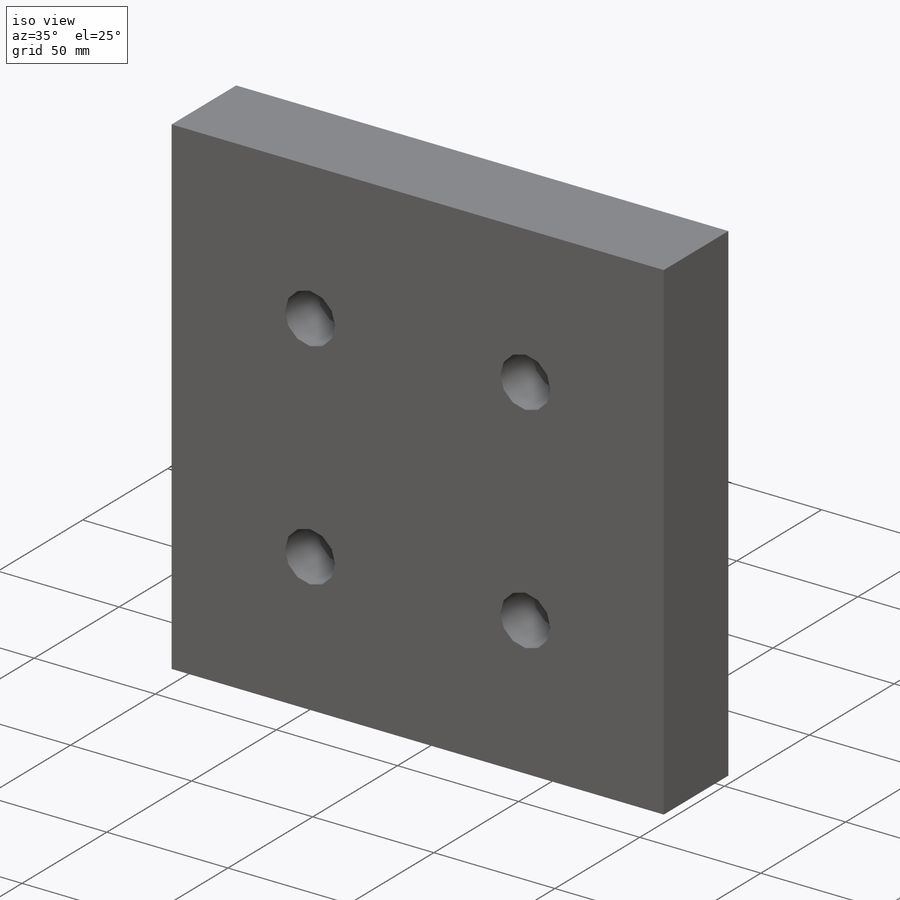
[diagram: iso view]
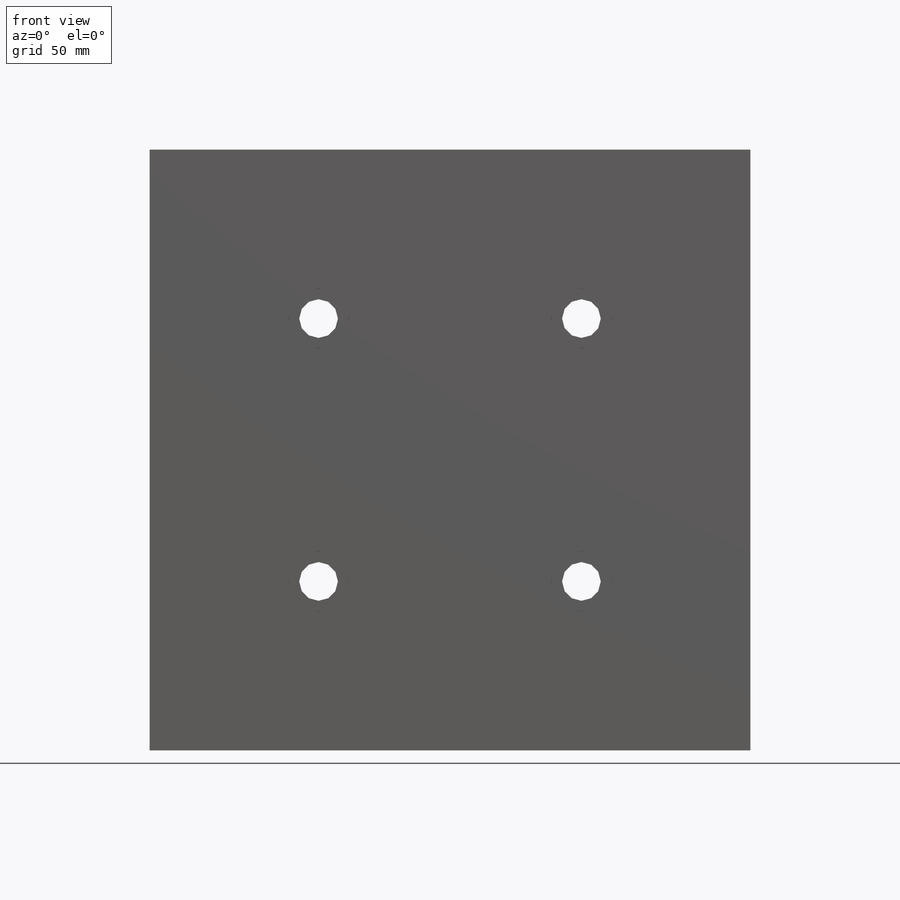
[diagram: front view]
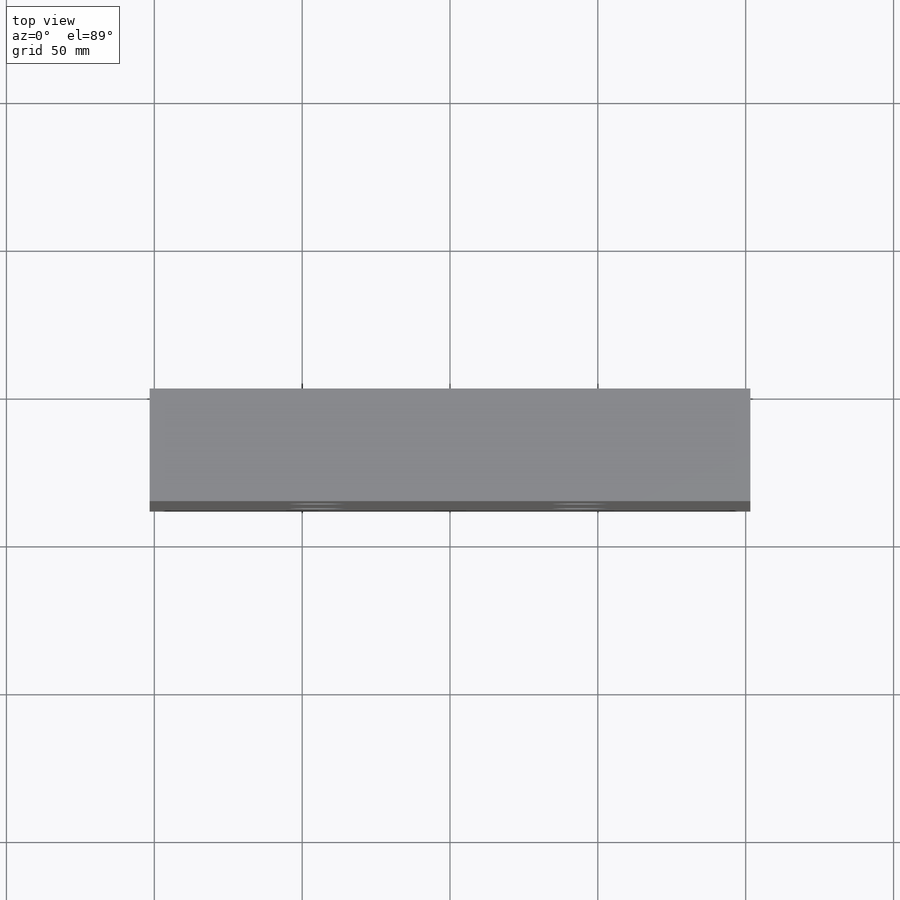
[diagram: top view]
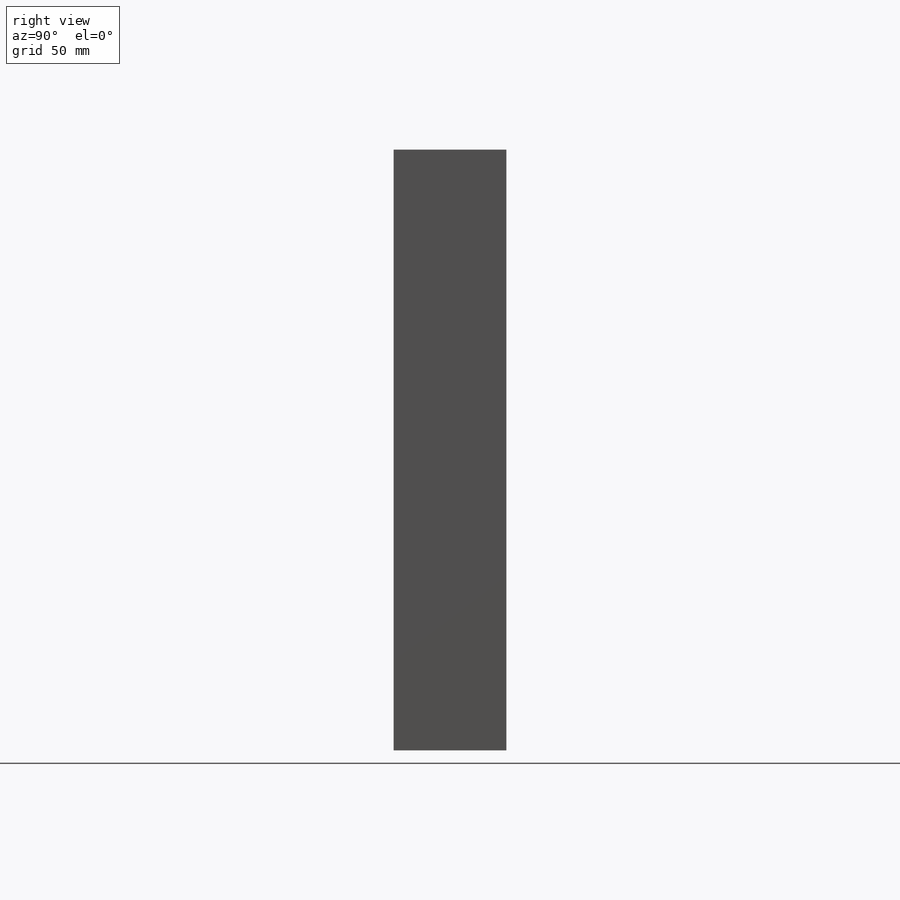
[diagram: right view]
SOLIDWORKS PART (.sldprt)
format: sldprt  version: not decoded by parser v0  size: 169,984 bytes
history: native  units: mm
features: sketch x3, material x1, extrude x1, hole x1 + 1 further entry (+13 scaffold rows collapsed)
feature tree (20):
  scaffold x13  (default folders/planes/origin — collapsed)
  material  "6061-T6 Al"
  "Origin"  ID=-1
  sketch  "Sketch1"  dims[D1=203.2mm D2=203.2mm]
  extrude  "Boss-Extrude1"  Depth=38.1mm
  hole  "CBORE for 1/2 Socket Head Cap Screw1"  Diameter=13.09624mm Depth=38.1mm
  sketch  "Sketch3"  dims[D1=88.9mm]
  sketch  "Sketch4"  dims[hole-wizard template sketch: 41 standard entries collapsed; hole parameters kept: c12.Thru Hole Dia.=~13.09624mm c12.Thru Hole Depth=38.1mm c12.C'Bore Dia.=20.6375mm c12.C'Bore Depth=19.05mm]
decode coverage: 5 of 5 modeling features carry decoded parameters; 1 rows unclassified (native names shown)
note: ~ marks probable driven/reference dimensions
note: suppression state not decoded; provenance and decode notes live in map.json
